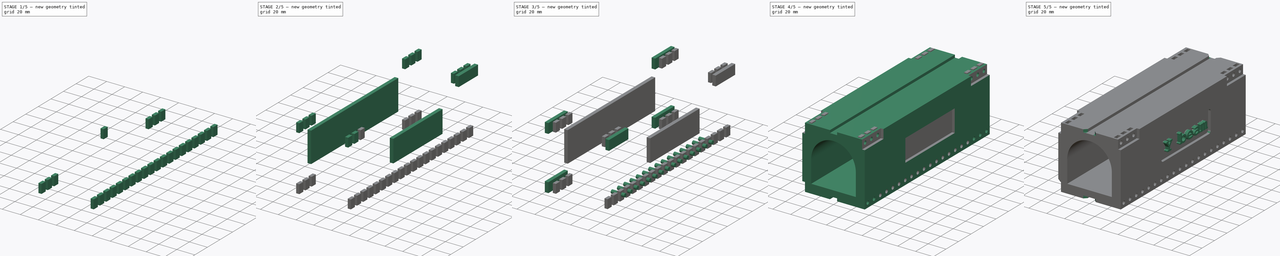
[diagram: build sequence overview — one tinted view per stage of 5, left to right]
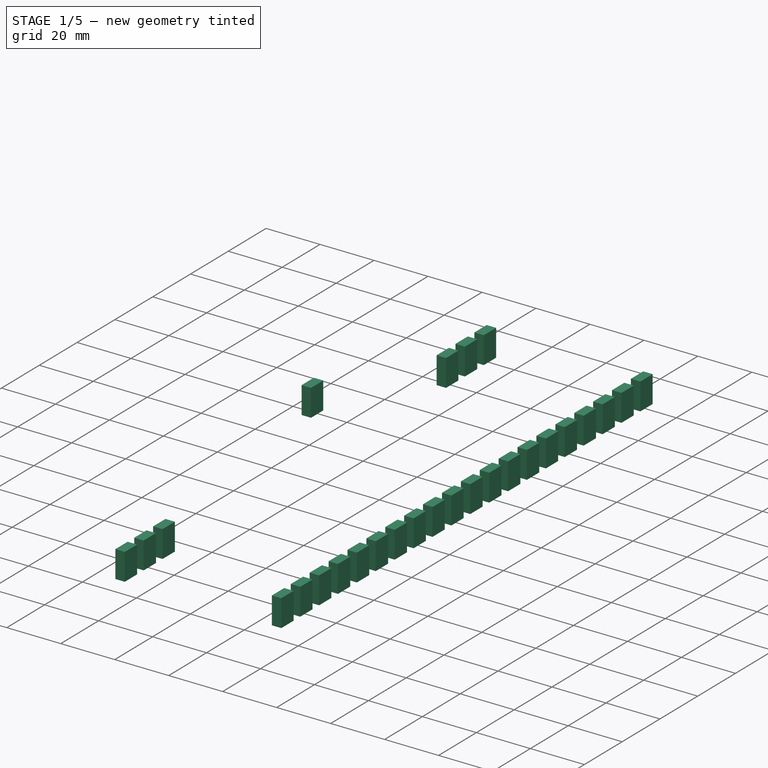
[diagram: stage 1 of 5 — iso view after this stage's code; geometry added in this stage tinted green]
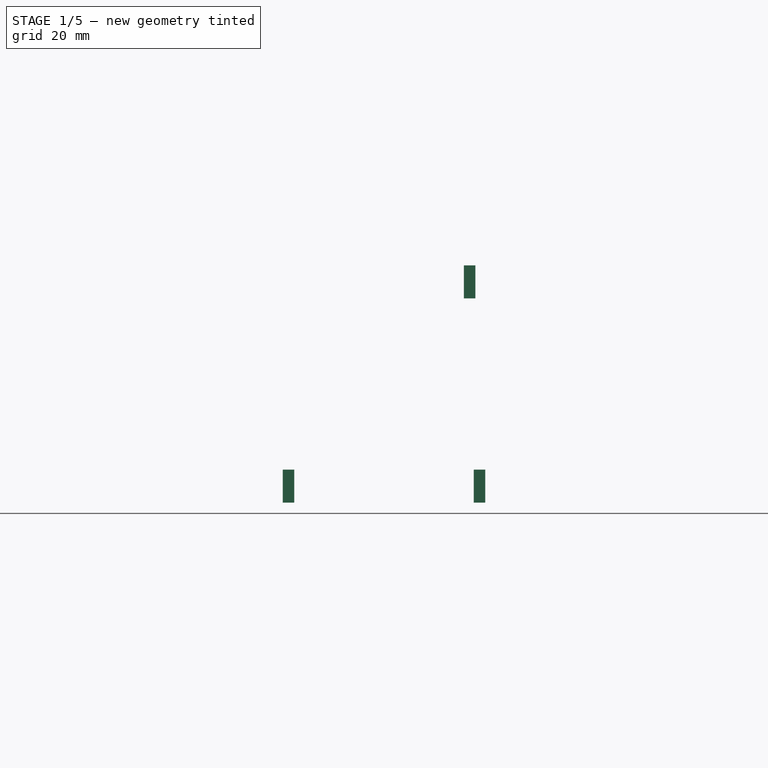
[diagram: stage 1 of 5 — front view after this stage's code; geometry added in this stage tinted green]
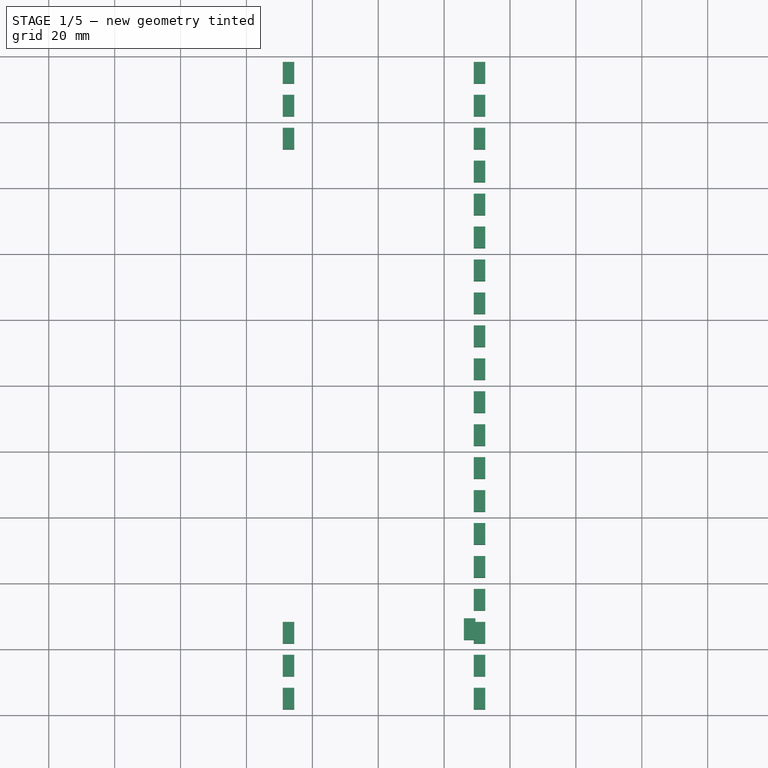
[diagram: stage 1 of 5 — top view after this stage's code; geometry added in this stage tinted green]
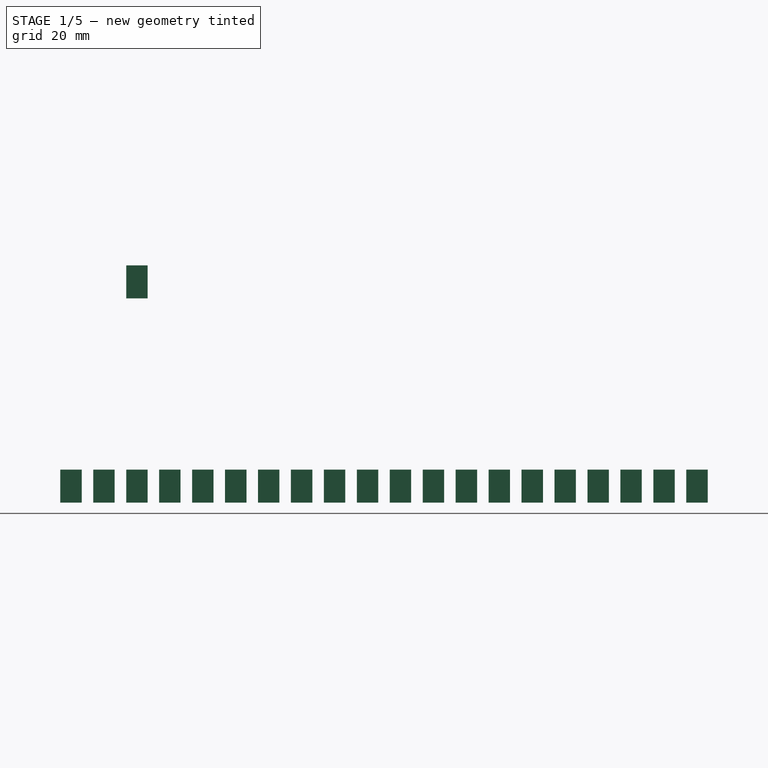
[diagram: stage 1 of 5 — right view after this stage's code; geometry added in this stage tinted green]
FCSTD DOCUMENT  (FreeCAD 0.14R3702 (Git))
Label: ybeam
License: CC-BY 3.0
LicenseURL: http://creativecommons.org/licenses/by/3.0/
objects: Part::FeaturePython×10, Part::Box×9, Part::MultiFuse×5, Part::Cut×4, Part::Cylinder×3, Part::Part2DObjectPython×2, Part::Extrusion×2, Part::Chamfer×2, Sketcher::SketchObject×1, PartDesign::Pad×1, Part::Fillet×1
note: 41 computed .brp shape members not serialized (recipe doc carries the construction recipe); baked Part::Feature solids carry a one-line shape summary decoded from their .brp

FEATURE [Part::Box] Box005  label="Cube001"
  Height = 10
  Length = 3.5
  Placement = pos=(26,-178.25,26) rot=(0,0,1;0rad)
  Width = 6.5
FEATURE [Part::Box] Box006  label="Cube002"
  Height = 10
  Length = 3.5
  Placement = pos=(29,-8.25,-36) rot=(0,0,1;0rad)
  Width = 6.5
FEATURE [Part::FeaturePython] Array007  label="h_nut_dn_r"  # Draft array (typed FeaturePython)
  Angle = 360
  ArrayType = 0
  Axis = (0,0,1)
  Base = -> Box006
  Center = (0,0,0)
  IntervalX = (-58,0,0)
  IntervalY = (0,-10,0)
  IntervalZ = (0,0,1)
  NumberPolar = 1
  NumberX = 2
  NumberY = 3
  NumberZ = 1
FEATURE [Part::Box] Box007  label="Cube003"
  Height = 10
  Length = 3.5
  Placement = pos=(29,-178.25,-36) rot=(0,0,1;0rad)
  Width = 6.5
FEATURE [Part::FeaturePython] Array008  label="h_nut_dn_l"  # Draft array (typed FeaturePython)
  Angle = 360
  ArrayType = 0
  Axis = (0,0,1)
  Base = -> Box007
  Center = (0,0,0)
  IntervalX = (-58,0,0)
  IntervalY = (0,-10,0)
  IntervalZ = (0,0,1)
  NumberPolar = 1
  NumberX = 2
  NumberY = 3
  NumberZ = 1
FEATURE [Part::Box] Box008  label="Cube004"
  Height = 10
  Length = 3.5
  Placement = pos=(29,-38.25,-36) rot=(0,0,1;0rad)
  Width = 6.5
FEATURE [Part::FeaturePython] Array009  label="h_nut_dn_rack"  # Draft array (typed FeaturePython)
  Angle = 360
  ArrayType = 0
  Axis = (0,0,1)
  Base = -> Box008
  Center = (0,0,0)
  IntervalX = (-58,0,0)
  IntervalY = (0,-10,0)
  IntervalZ = (0,0,1)
  NumberPolar = 1
  NumberX = 1
  NumberY = 14
  NumberZ = 1
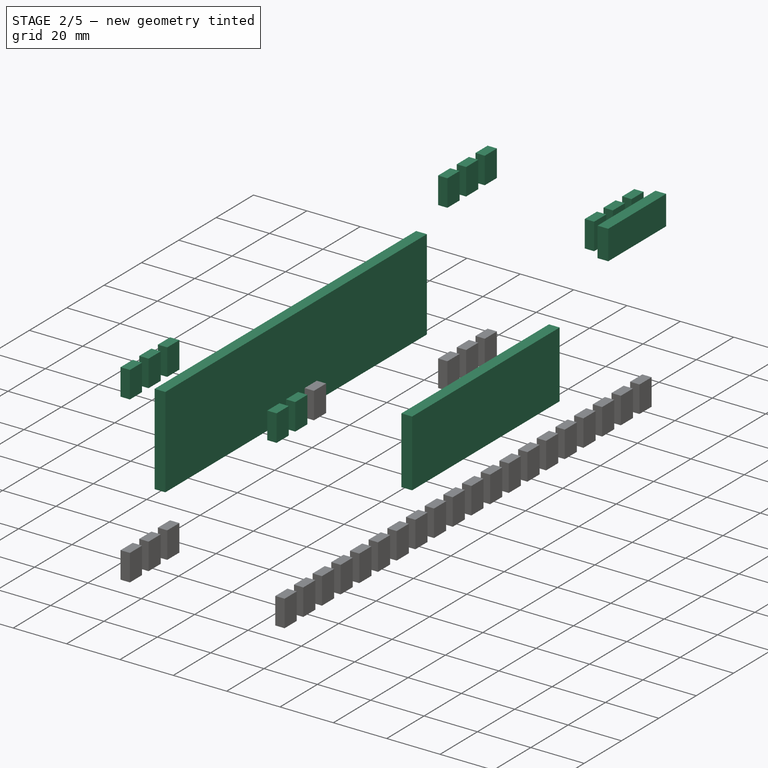
[diagram: stage 2 of 5 — iso view after this stage's code; geometry added in this stage tinted green]
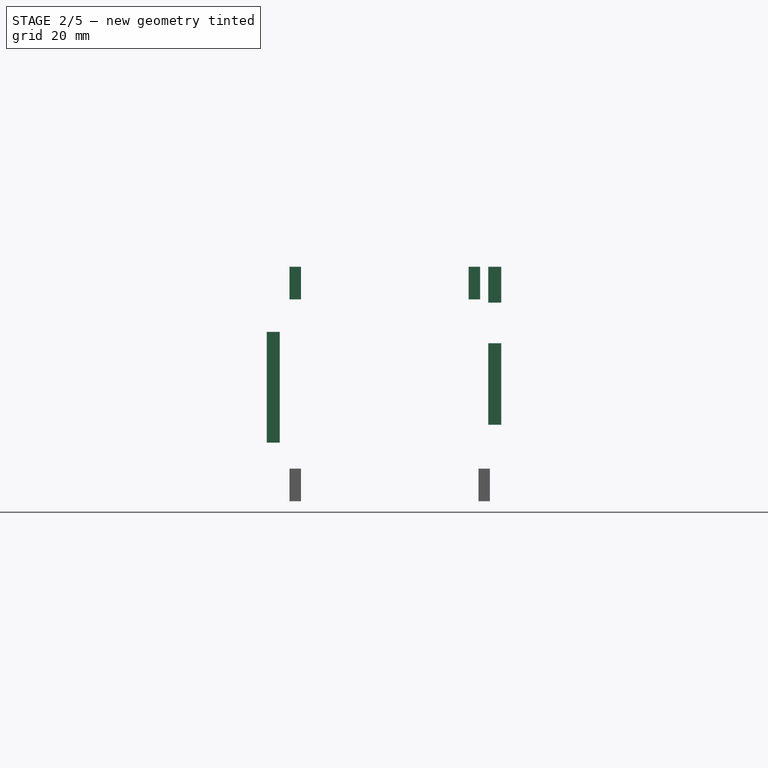
[diagram: stage 2 of 5 — front view after this stage's code; geometry added in this stage tinted green]
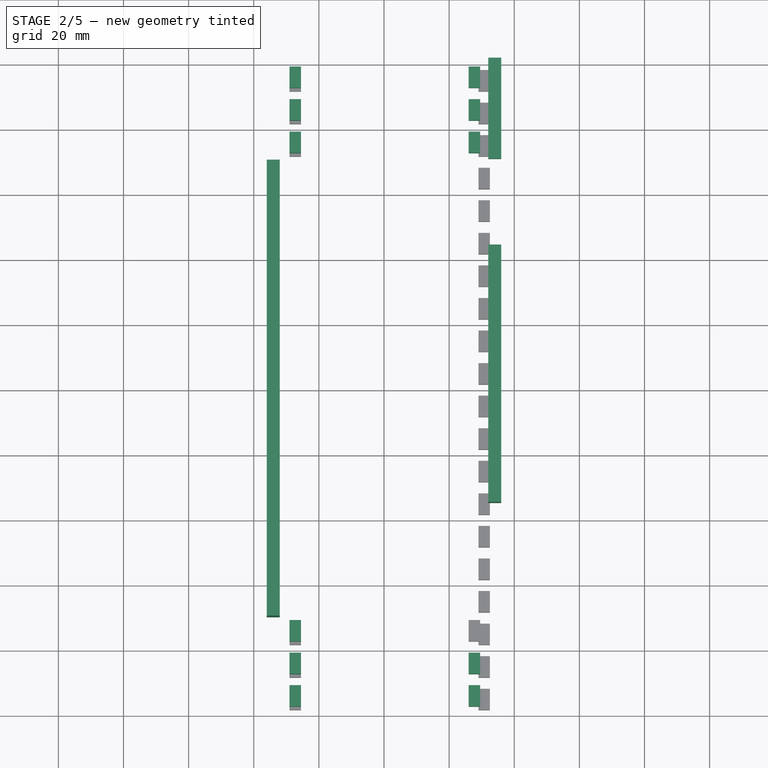
[diagram: stage 2 of 5 — top view after this stage's code; geometry added in this stage tinted green]
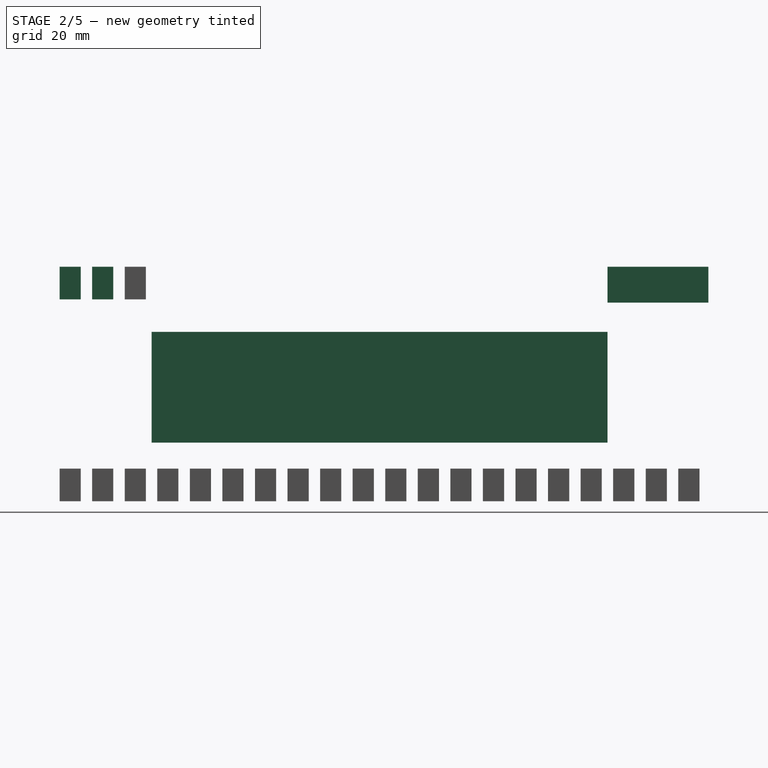
[diagram: stage 2 of 5 — right view after this stage's code; geometry added in this stage tinted green]
FEATURE [Part::Box] Box001  label="h_groove_l_dn001"
  Height = 11
  Length = 4
  Placement = pos=(32,-30,25) rot=(0,0,1;0rad)
  Width = 31
FEATURE [Part::Box] Box002  label="h_groove_txt_reptor3D"
  Height = 34
  Length = 4
  Placement = pos=(-36,-170,-18) rot=(0,0,1;0rad)
  Width = 140
FEATURE [Part::Box] Box003  label="h_groove_txt_ybeam"
  Height = 25
  Length = 4
  Placement = pos=(32,-135,-12.5) rot=(0,0,1;0rad)
  Width = 79
FEATURE [Part::MultiFuse] Fusion002  label="h_groove_txt"
  Shapes = -> [Box002,Box003]
FEATURE [Part::Box] Box004  label="Cube"
  Height = 10
  Length = 3.5
  Placement = pos=(26,-8.25,26) rot=(0,0,1;0rad)
  Width = 6.5
FEATURE [Part::FeaturePython] Array005  label="h_nut_up_r"  # Draft array (typed FeaturePython)
  Angle = 360
  ArrayType = 0
  Axis = (0,0,1)
  Base = -> Box004
  Center = (0,0,0)
  IntervalX = (-55,0,0)
  IntervalY = (0,-10,0)
  IntervalZ = (0,0,1)
  NumberPolar = 1
  NumberX = 2
  NumberY = 3
  NumberZ = 1
FEATURE [Part::FeaturePython] Array006  label="h_nut_up_l"  # Draft array (typed FeaturePython)
  Angle = 360
  ArrayType = 0
  Axis = (0,0,1)
  Base = -> Box005
  Center = (0,0,0)
  IntervalX = (-55,0,0)
  IntervalY = (0,-10,0)
  IntervalZ = (0,0,1)
  NumberPolar = 1
  NumberX = 2
  NumberY = 3
  NumberZ = 1
FEATURE [Part::MultiFuse] Fusion004  label="h_nuts"
  Shapes = -> [Array009,Array008,Array007,Array006,Array005]
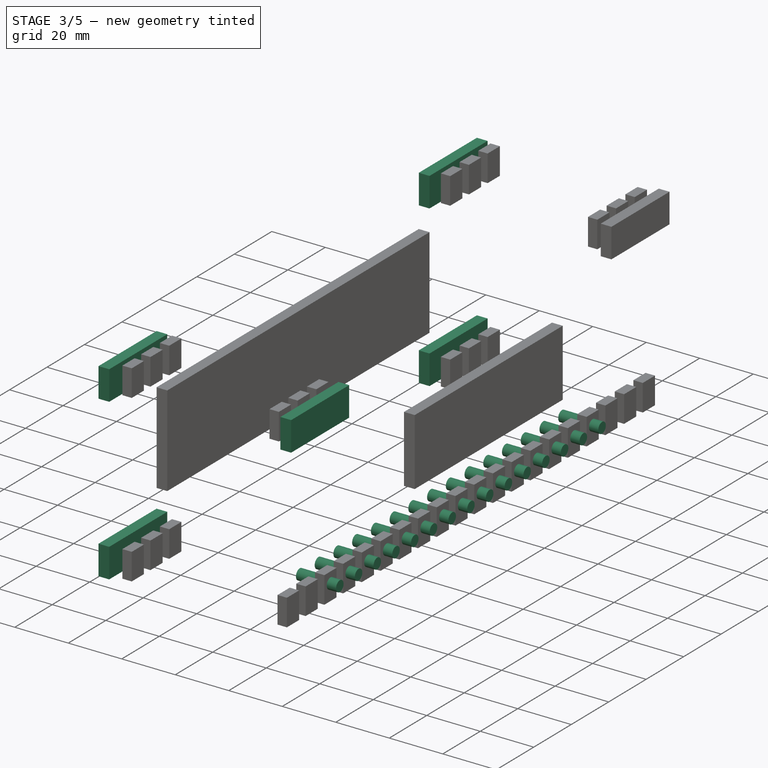
[diagram: stage 3 of 5 — iso view after this stage's code; geometry added in this stage tinted green]
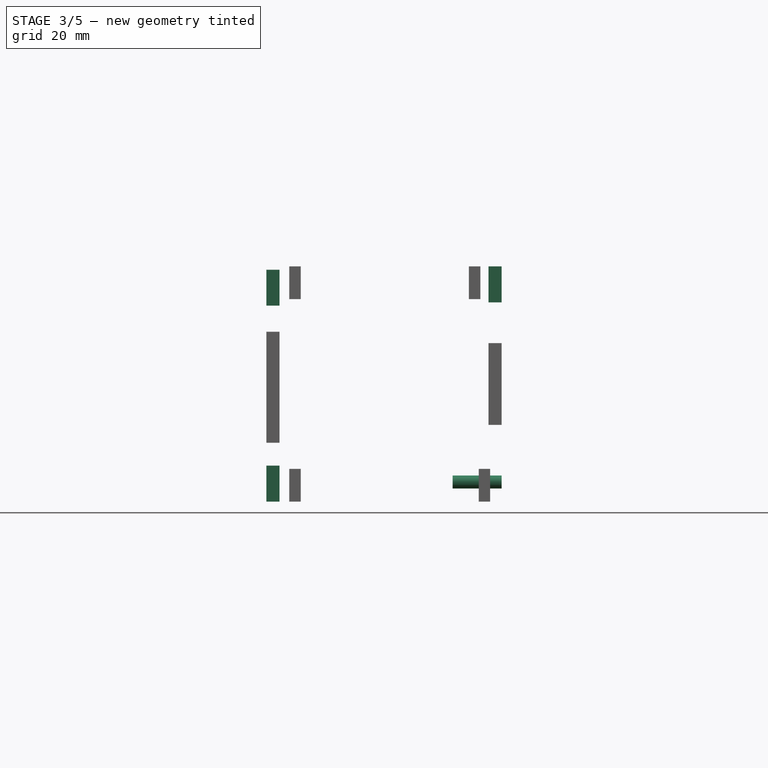
[diagram: stage 3 of 5 — front view after this stage's code; geometry added in this stage tinted green]
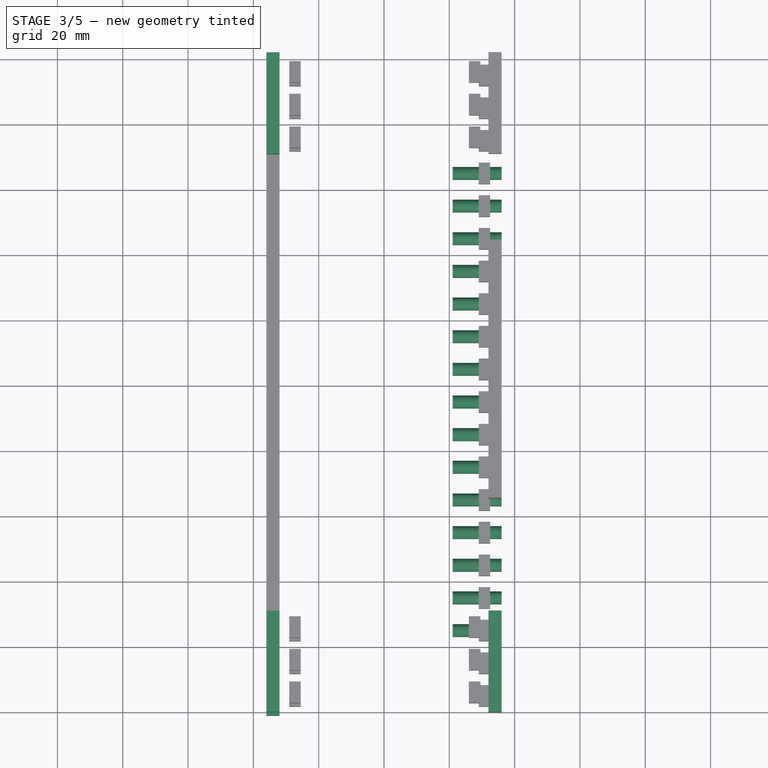
[diagram: stage 3 of 5 — top view after this stage's code; geometry added in this stage tinted green]
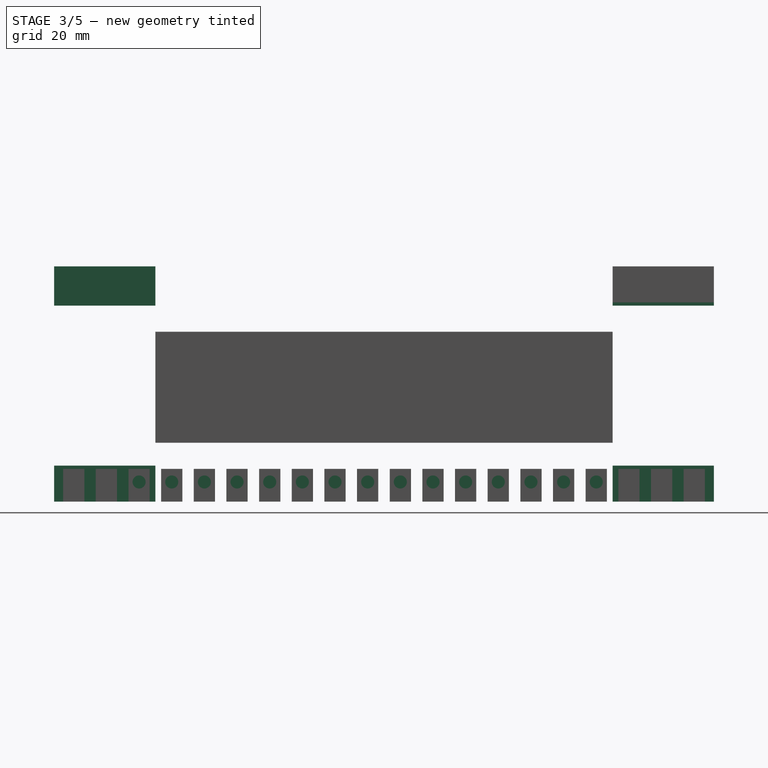
[diagram: stage 3 of 5 — right view after this stage's code; geometry added in this stage tinted green]
FEATURE [Part::Cylinder] Cylinder001  label="h_rack001"
  Angle = 360
  Height = 15
  Placement = pos=(21,-175,-30) rot=(0,1,0;1.5708rad)
  Radius = 2
FEATURE [Part::Cylinder] Cylinder002  label="h_rack002"
  Angle = 360
  Height = 15
  Placement = pos=(21,-35,-30) rot=(0,1,0;1.5708rad)
  Radius = 2
FEATURE [Part::FeaturePython] Array002  label="h_bolts_rack"  # Draft array (typed FeaturePython)
  Angle = 360
  ArrayType = 0
  Axis = (0,0,1)
  Base = -> Cylinder002
  Center = (0,0,0)
  IntervalX = (1,0,0)
  IntervalY = (0,-10,0)
  IntervalZ = (0,0,1)
  NumberPolar = 1
  NumberX = 1
  NumberY = 14
  NumberZ = 1
FEATURE [Part::Box] Box  label="h_groove_l_dn"
  Height = 11
  Length = 4
  Placement = pos=(-36,-30,-36) rot=(0,0,1;0rad)
  Width = 31
FEATURE [Part::FeaturePython] Array003  label="h_groove_l"  # Draft array (typed FeaturePython)
  Angle = 360
  ArrayType = 0
  Axis = (0,0,1)
  Base = -> Box
  Center = (0,0,0)
  IntervalX = (1,0,0)
  IntervalY = (0,-171,0)
  IntervalZ = (0,0,60)
  NumberPolar = 1
  NumberX = 1
  NumberY = 2
  NumberZ = 2
FEATURE [Part::FeaturePython] Array004  label="h_groove_r"  # Draft array (typed FeaturePython)
  Angle = 360
  ArrayType = 0
  Axis = (0,0,1)
  Base = -> Box001
  Center = (0,0,0)
  IntervalX = (1,0,0)
  IntervalY = (0,-171,0)
  IntervalZ = (0,0,60)
  NumberPolar = 1
  NumberX = 1
  NumberY = 2
  NumberZ = 1
FEATURE [Part::MultiFuse] Fusion001  label="h_groove"
  Shapes = -> [Array004,Array003]
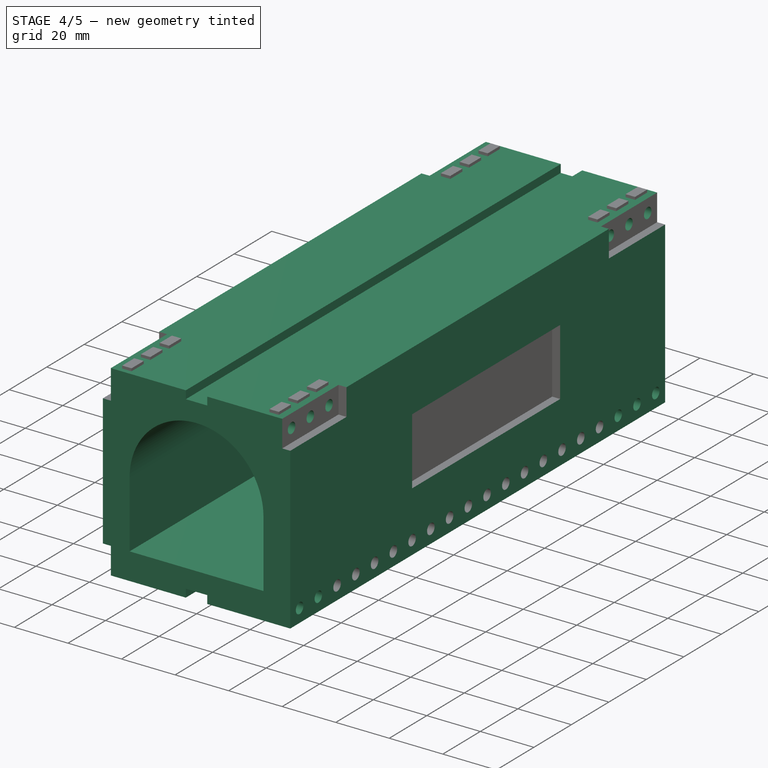
[diagram: stage 4 of 5 — iso view after this stage's code; geometry added in this stage tinted green]
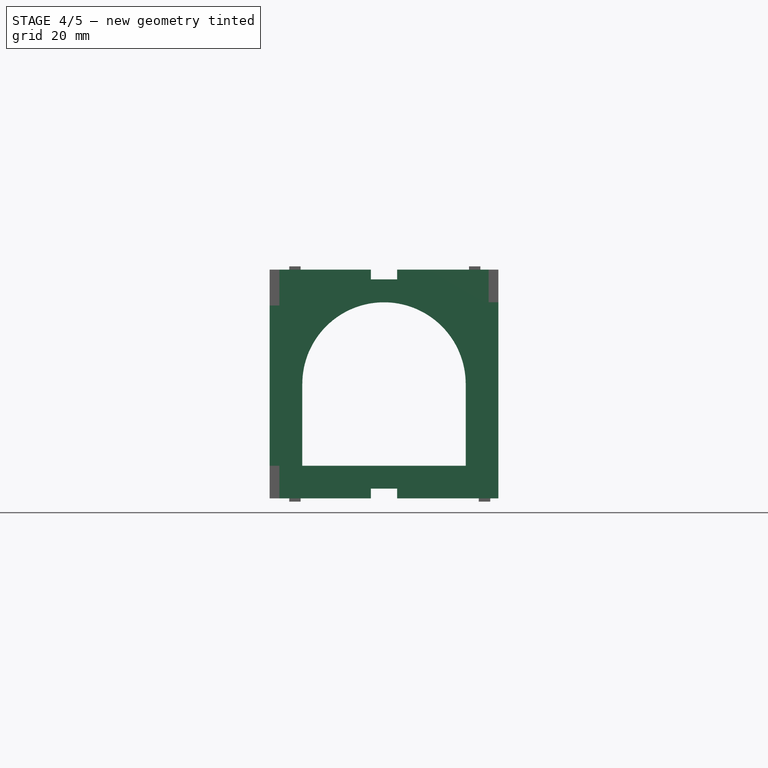
[diagram: stage 4 of 5 — front view after this stage's code; geometry added in this stage tinted green]
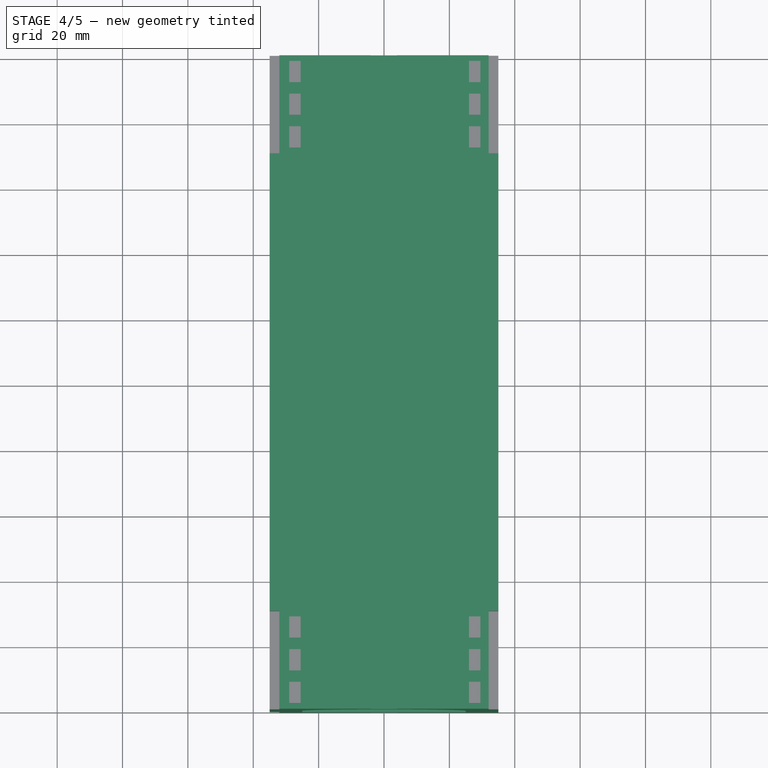
[diagram: stage 4 of 5 — top view after this stage's code; geometry added in this stage tinted green]
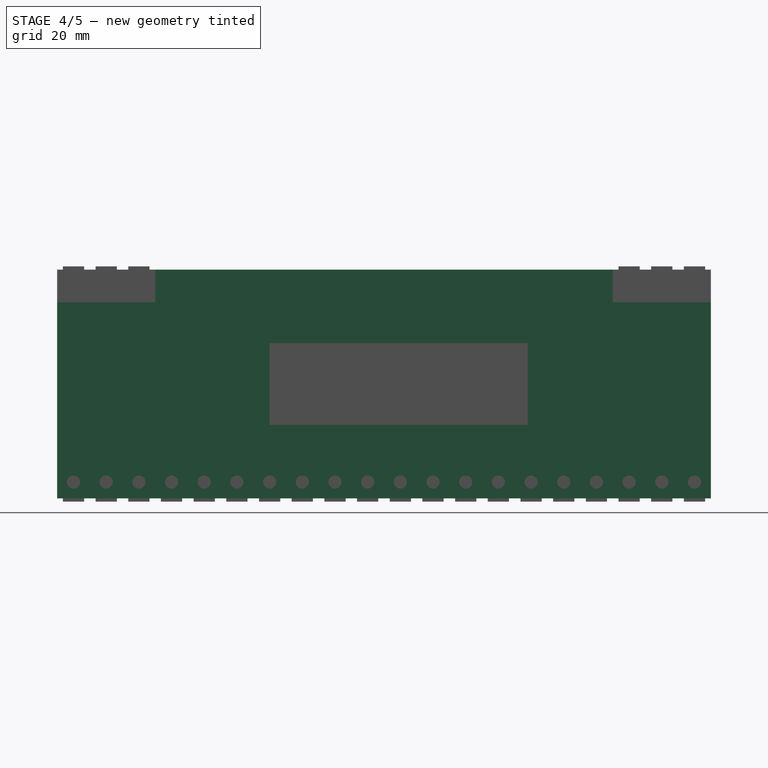
[diagram: stage 4 of 5 — right view after this stage's code; geometry added in this stage tinted green]
FEATURE [Sketcher::SketchObject] Sketch
  Placement = pos=(0,0,0) rot=(1,0,0;1.5708rad)
  sketch-geometry (16):
    g0: LineSegment StartX=35 StartY=35 StartZ=0 EndX=35 EndY=-35 EndZ=0
    g1: LineSegment StartX=35 StartY=-35 StartZ=0 EndX=4 EndY=-35 EndZ=0
    g2: LineSegment StartX=-35 StartY=-35 StartZ=0 EndX=-35 EndY=35 EndZ=0
    g3: ArcOfCircle CenterX=0 CenterY=0 CenterZ=0 NormalX=0 NormalY=0 NormalZ=1 Radius=25 StartAngle=2.01301e-06 EndAngle=3.14159
    g4: LineSegment StartX=25 StartY=5.03252e-05 StartZ=0 EndX=25 EndY=-25 EndZ=0
    g5: LineSegment StartX=25 StartY=-25 StartZ=0 EndX=-25 EndY=-25 EndZ=0
    g6: LineSegment StartX=-25 StartY=-25 StartZ=0 EndX=-25 EndY=0 EndZ=0
    g7: LineSegment StartX=4 StartY=35 StartZ=0 EndX=4 EndY=32 EndZ=0
    g8: LineSegment StartX=4 StartY=32 StartZ=0 EndX=-4 EndY=32 EndZ=0
    g9: LineSegment StartX=-4 StartY=32 StartZ=0 EndX=-4 EndY=35 EndZ=0
    g10: LineSegment StartX=-4 StartY=35 StartZ=0 EndX=-35 EndY=35 EndZ=0
    g11: LineSegment StartX=4 StartY=35 StartZ=0 EndX=35 EndY=35 EndZ=0
    g12: LineSegment StartX=-4 StartY=-35 StartZ=0 EndX=-4 EndY=-32 EndZ=0
    g13: LineSegment StartX=-4 StartY=-32 StartZ=0 EndX=4 EndY=-32 EndZ=0
    g14: LineSegment StartX=4 StartY=-32 StartZ=0 EndX=4 EndY=-35 EndZ=0
    g15: LineSegment StartX=-4 StartY=-35 StartZ=0 EndX=-35 EndY=-35 EndZ=0
  constraints (45):
    c: Coincident(g0,g1)
    c: Coincident(g15,g2)
    c: Horizontal(g1)
    c: Vertical(g0)
    c: Vertical(g2)
    c: Coincident(g4,g5)
    c: Coincident(g5,g6)
    c: Horizontal(g5)
    c: Vertical(g4)
    c: Vertical(g6)
    c: PointOnObject(g6,g-1)
    c: DistanceX(g5) = -50
    c: Symmetric(g15,g0,g-2)
    c: Symmetric(g4,g5,g-2)
    c: DistanceY(g2) = 70
    c: Symmetric(g0,g0,g-1)
    c: Coincident(g3,g6)
    c: DistanceY(g5,g15) = -10
    c: Coincident(g3,g-1)
    c: Coincident(g7,g8)
    c: Coincident(g8,g9)
    c: Horizontal(g8)
    c: Vertical(g7)
    c: Vertical(g9)
    c: Symmetric(g9,g7,g-2)
    c: DistanceY(g9) = 3
    c: DistanceX(g8) = -8
    c: Coincident(g10,g9)
    c: Coincident(g10,g2)
    c: Horizontal(g10)
    c: Coincident(g11,g7)
    c: Coincident(g11,g0)
    c: Horizontal(g11)
    c: Vertical(g12)
    c: Coincident(g12,g13)
    c: Horizontal(g13)
    c: Coincident(g13,g14)
    c: Vertical(g14)
    c: DistanceX(g13) = 8
    c: Symmetric(g12,g13,g-2)
    c: Coincident(g1,g14)
    c: Coincident(g15,g12)
    c: Tangent(g1,g15)
    c: DistanceX(g2,g0) = 70
    c: Coincident(g3,g4)
FEATURE [PartDesign::Pad] Pad  label="s_base"
  Length = 200
  Length2 = 100
  Placement = pos=(0,0,0) rot=(1,0,0;1.5708rad)
  Sketch = -> Sketch
  Type = 0
FEATURE [Part::Cylinder] Cylinder  label="h_rack"
  Angle = 360
  Height = 15
  Placement = pos=(21,-5,-30) rot=(0,1,0;1.5708rad)
  Radius = 2
FEATURE [Part::FeaturePython] Array  label="h_union_r"  # Draft array (typed FeaturePython)
  Angle = 360
  ArrayType = 0
  Axis = (0,0,1)
  Base = -> Cylinder
  Center = (0,0,0)
  IntervalX = (-57,0,0)
  IntervalY = (0,-10,0)
  IntervalZ = (0,0,60)
  NumberPolar = 1
  NumberX = 2
  NumberY = 3
  NumberZ = 2
FEATURE [Part::FeaturePython] Array001  label="h_union_l"  # Draft array (typed FeaturePython)
  Angle = 360
  ArrayType = 0
  Axis = (0,0,1)
  Base = -> Cylinder001
  Center = (0,0,0)
  IntervalX = (-57,0,0)
  IntervalY = (0,-10,0)
  IntervalZ = (0,0,60)
  NumberPolar = 1
  NumberX = 2
  NumberY = 3
  NumberZ = 2
FEATURE [Part::MultiFuse] Fusion  label="h_holes_bolts_rack"
  Shapes = -> [Array002,Array001,Array]
FEATURE [Part::Cut] Cut  label="s_base001"
  Base = -> Pad
  Tool = -> Fusion
FEATURE [Part::Cut] Cut001  label="s_base002"
  Base = -> Cut
  Tool = -> Fusion001
FEATURE [Part::Cut] Cut002
  Base = -> Cut001
  Tool = -> Fusion002
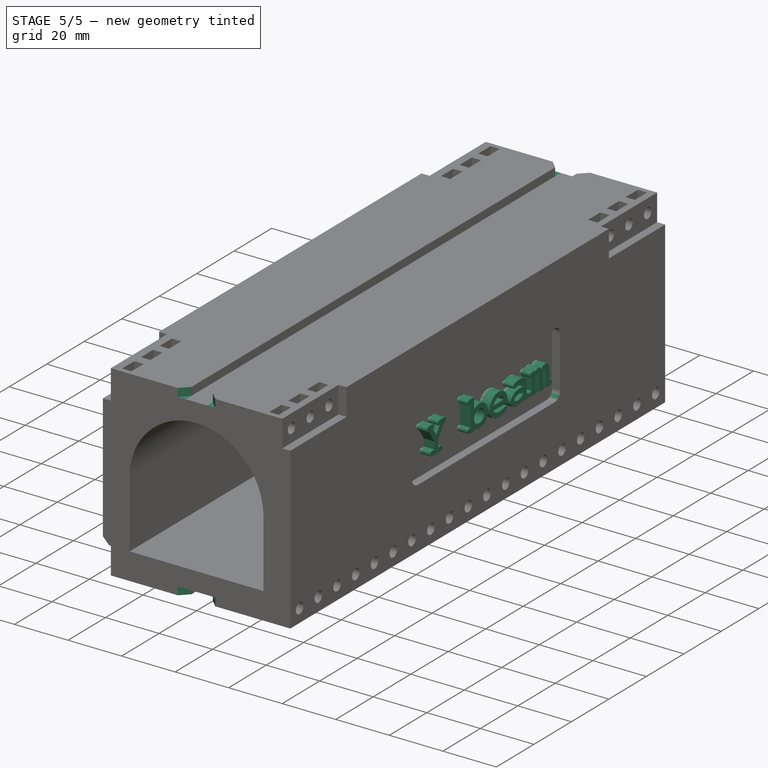
[diagram: stage 5 of 5 — iso view after this stage's code; geometry added in this stage tinted green]
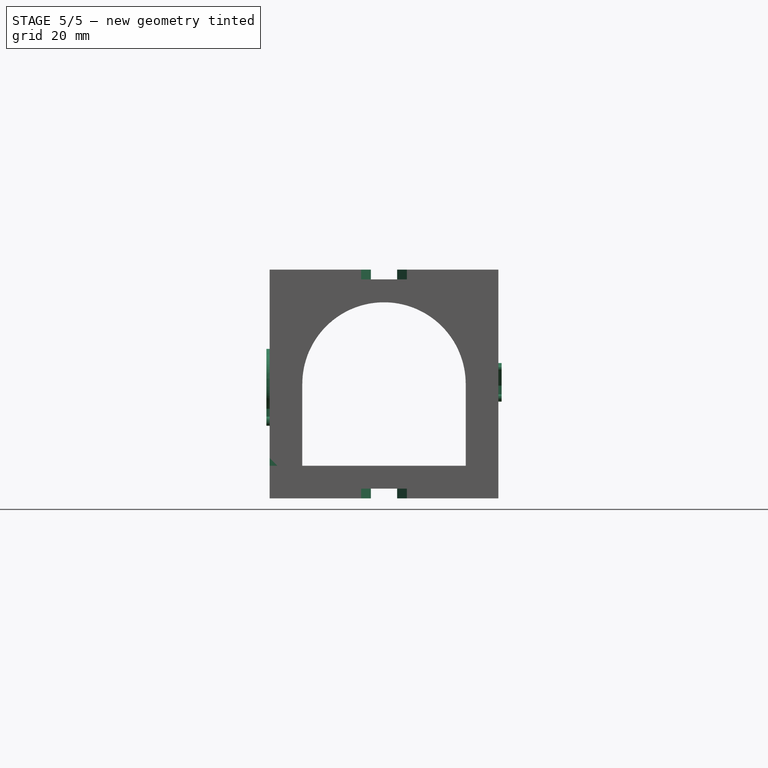
[diagram: stage 5 of 5 — front view after this stage's code; geometry added in this stage tinted green]
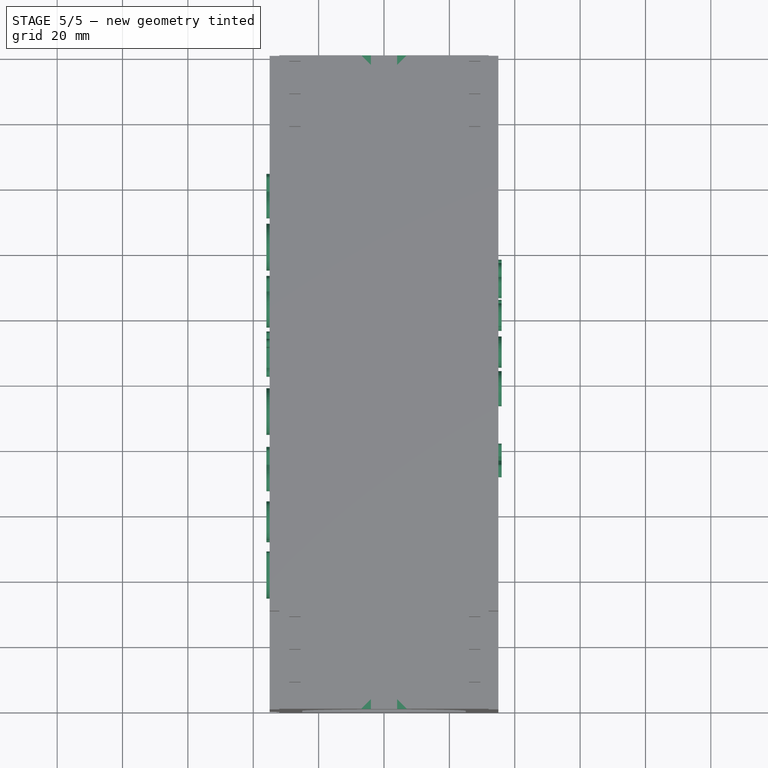
[diagram: stage 5 of 5 — top view after this stage's code; geometry added in this stage tinted green]
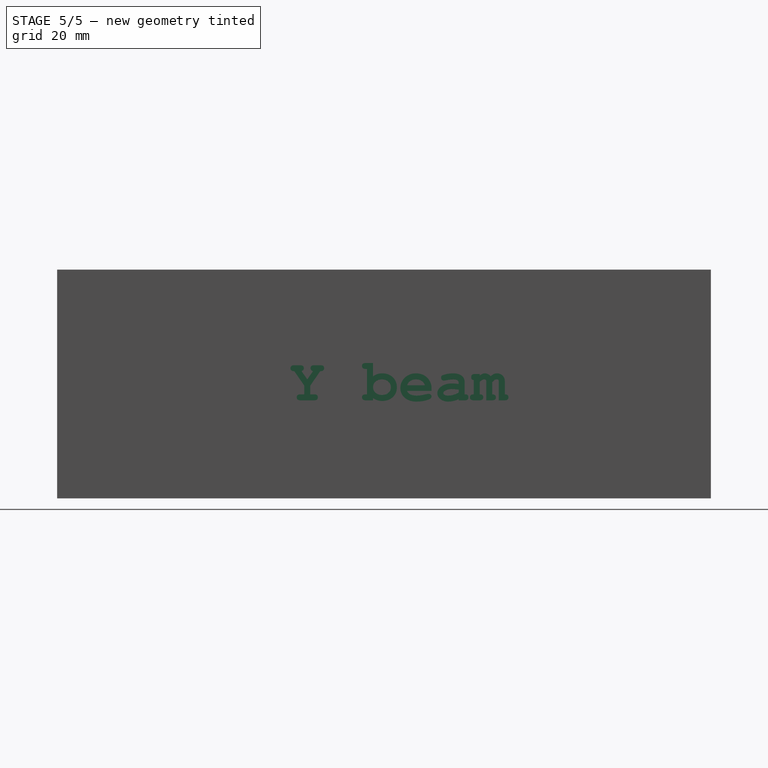
[diagram: stage 5 of 5 — right view after this stage's code; geometry added in this stage tinted green]
FEATURE [Part::Part2DObjectPython] ShapeString  # Draft 2D object (typed FeaturePython)
  FontFile = <path>
  Placement = pos=(-36,-33.3152,-7) rot=(0.57735,-0.57735,-0.57735;2.0944rad)
  Size = 9
  String = reptor3D
  Support = -> Cut001
  Tracking = 0
FEATURE [Part::Extrusion] Extrude  label="s_txt_reptor3D"
  Base = -> ShapeString
  Dir = (4,0,0)
  Solid = true
FEATURE [Part::Part2DObjectPython] ShapeString001  # Draft 2D object (typed FeaturePython)
  FontFile = <path>
  Placement = pos=(32,-129,-5) rot=(0.57735,0.57735,0.57735;2.0944rad)
  Size = 6
  String = Y beam
  Support = -> Cut001
  Tracking = 0
FEATURE [Part::Extrusion] Extrude001  label="s_txt_ybeam"
  Base = -> ShapeString001
  Dir = (4,0,0)
  Solid = true
FEATURE [Part::MultiFuse] Fusion003
  Shapes = -> [Extrude001,Extrude,Cut002]
FEATURE [Part::Fillet] Fillet
  Base = -> Fusion003
  Edges = 8 edges r=3: [Edge184,Edge186,Edge187,Edge189,Edge626,Edge628,Edge630,Edge632]
FEATURE [Part::Chamfer] Chamfer
  Base = -> Fillet
  Edges = 8 edges r=3: [Edge437,Edge439,Edge447,Edge449,Edge461,Edge463,Edge471,Edge473]
FEATURE [Part::Chamfer] Chamfer001
  Base = -> Chamfer
  Edges = 2 edges r=2.4: [Edge149,Edge152]
FEATURE [Part::Cut] Cut003
  Base = -> Chamfer001
  Tool = -> Fusion004
note: 2 file-system paths scrubbed to <path> (originals preserved in the JSON sidecar)
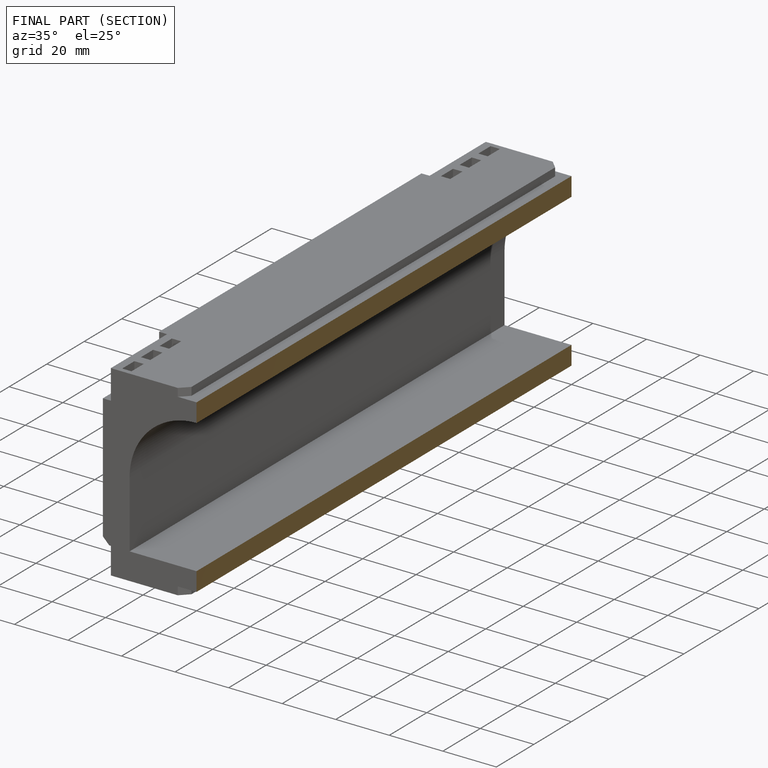
[diagram: finished part — half-section view (interior)]
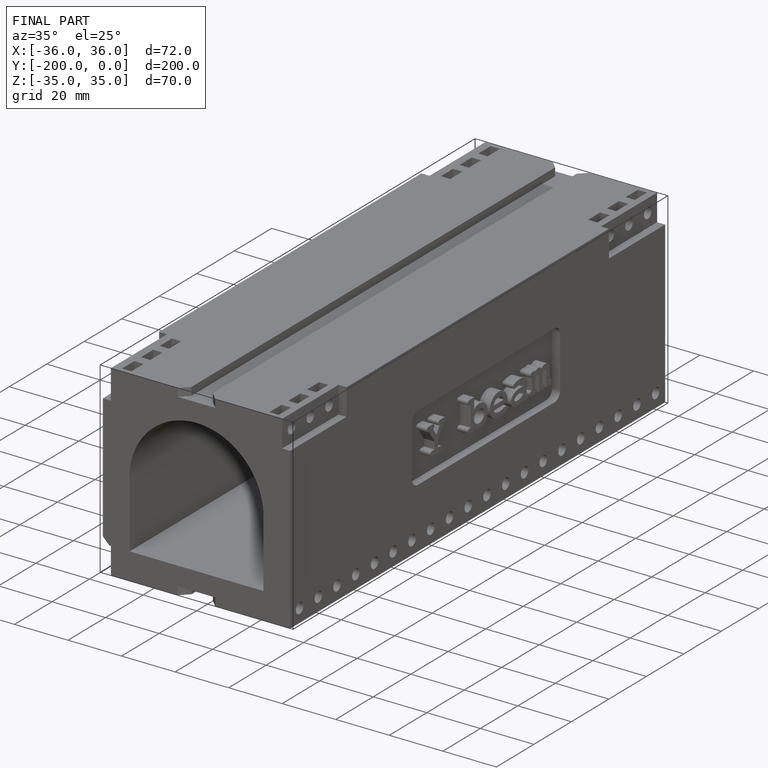
[diagram: finished part — iso view with bounding-box wireframe]
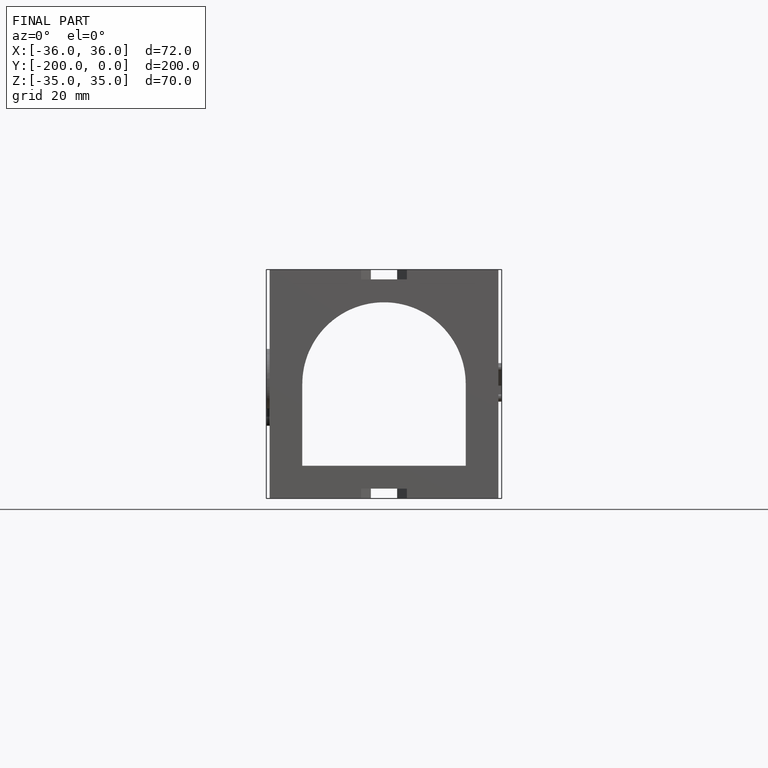
[diagram: finished part — front view with bounding-box wireframe]
